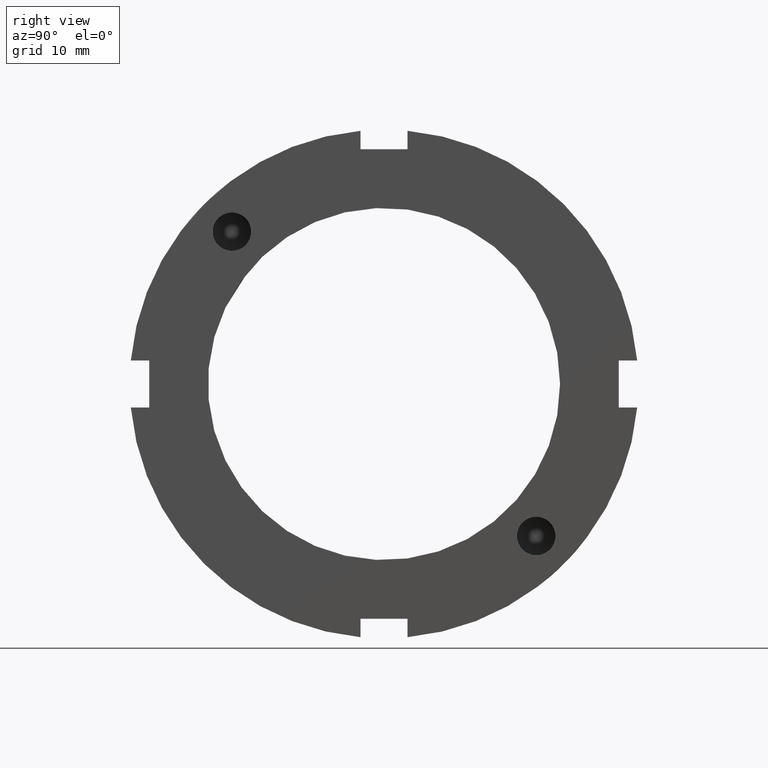
[diagram: clean part render]
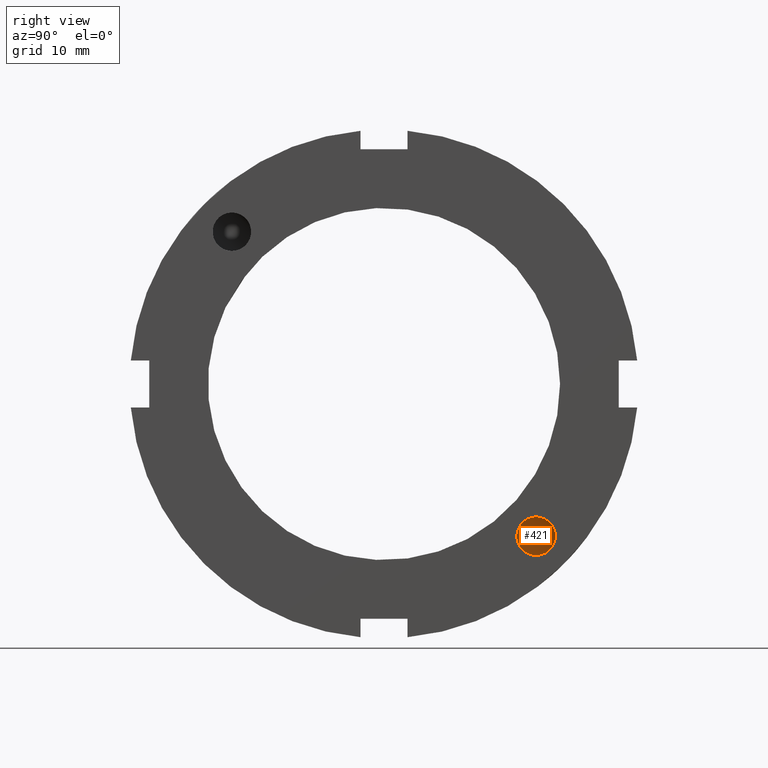
[diagram: same view with one face highlighted and labeled with its STEP entity id]
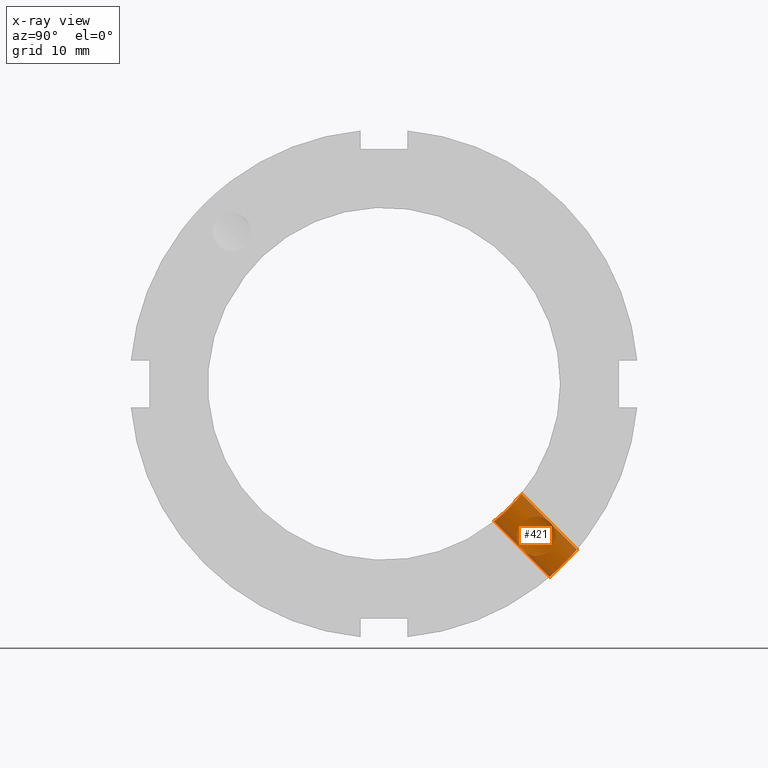
[diagram: x-ray of the same camera — body ghosted, the highlighted face saturated]
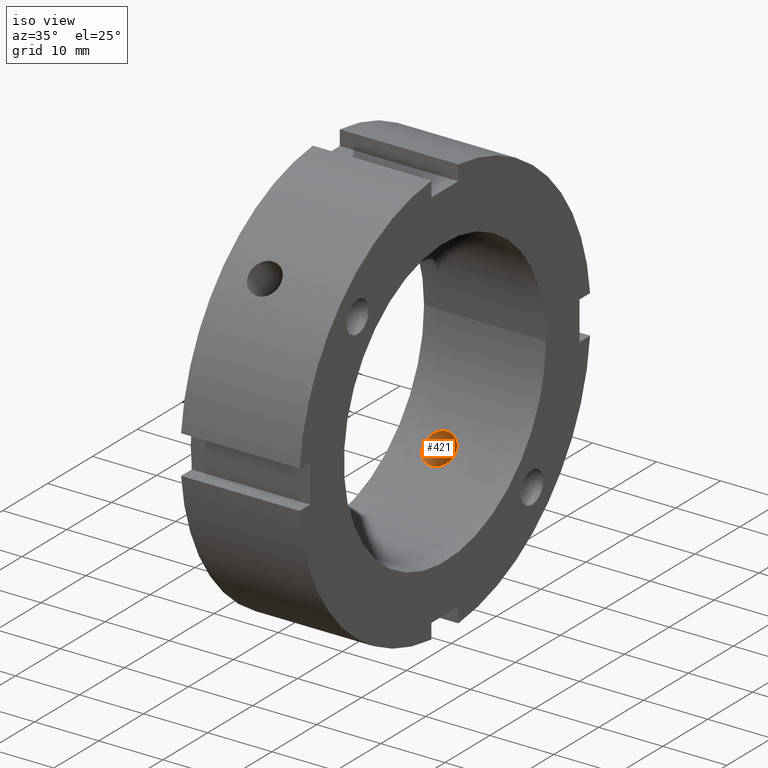
[diagram: same view with one face highlighted and labeled with its STEP entity id]
A machine part, right view. The second image highlights one B-rep face of the part: STEP entity #421.
The next image is the same camera in x-ray: the body ghosted, the highlighted face saturated — about 28% of this face is hidden behind the body in this view.
A second angle (iso view) of the same face is appended — the face is thin or edge-on in the first view.
In plain terms, the highlighted cylindrical surface (bore or boss wall) has radius 2.5 mm, axis along (0, 0.7071, -0.7071).
Its self-contained STEP definition (entity closure, byte-faithful):
#155=CARTESIAN_POINT('',(7.453627325014712,17.707014461082927,-21.183858504177199));
#156=VERTEX_POINT('',#155);
#157=CARTESIAN_POINT('',(7.453627325014694,17.707014461082927,-21.183858504177199));
#158=CARTESIAN_POINT('',(7.453627325014697,17.780514839018323,-21.257358882112595));
#159=CARTESIAN_POINT('',(7.485845144440799,17.843070083659555,-21.311664636771713));
#160=CARTESIAN_POINT('',(7.564508256890359,17.965413600412720,-21.410104479451761));
#161=CARTESIAN_POINT('',(7.612937817032519,18.024722311162975,-21.453235816937504));
#162=CARTESIAN_POINT('',(7.772228880000082,18.209742092433668,-21.575980550555499));
#163=CARTESIAN_POINT('',(7.895505545516970,18.339752875581166,-21.646778716114468));
#164=CARTESIAN_POINT('',(8.283828024816582,18.769385504964781,-21.829563965013897));
#165=CARTESIAN_POINT('',(8.561851096446061,19.102287243300900,-21.903936482630058));
#166=CARTESIAN_POINT('',(8.987347846502093,19.724179741279716,-21.903936482630048));
#167=CARTESIAN_POINT('',(9.170926118717734,20.040097651455447,-21.853377454499089));
#168=CARTESIAN_POINT('',(9.363473477026195,20.497944793285487,-21.673292772606892));
#169=CARTESIAN_POINT('',(9.414345366287389,20.648154857963078,-21.596321310773000));
#170=CARTESIAN_POINT('',(9.482622830029026,20.931412627416726,-21.411323542444759));
#171=CARTESIAN_POINT('',(9.499999999999993,21.064448448670458,-21.303268559683900));
#172=CARTESIAN_POINT('',(9.499999999999993,21.303268559683893,-21.064448448670468));
#173=CARTESIAN_POINT('',(9.482622830029028,21.411323542444745,-20.931412627416744));
#174=CARTESIAN_POINT('',(9.414345366287385,21.596321310772993,-20.648154857963085));
#175=CARTESIAN_POINT('',(9.363473477026187,21.673292772606885,-20.497944793285484));
#176=CARTESIAN_POINT('',(9.170926118717720,21.853377454499086,-20.040097651455433));
#177=CARTESIAN_POINT('',(8.987347846502079,21.903936482630037,-19.724179741279702));
#178=CARTESIAN_POINT('',(8.561851096446040,21.903936482630037,-19.102287243300886));
#179=CARTESIAN_POINT('',(8.283828024816549,21.829563965013882,-18.769385504964774));
#180=CARTESIAN_POINT('',(7.895505545516941,21.646778716114447,-18.339752875581166));
#181=CARTESIAN_POINT('',(7.772228880000068,21.575980550555478,-18.209742092433661));
#182=CARTESIAN_POINT('',(7.612937817032515,21.453235816937479,-18.024722311162968));
#183=CARTESIAN_POINT('',(7.564508256890344,21.410104479451736,-17.965413600412717));
#184=CARTESIAN_POINT('',(7.485845144440787,21.311664636771688,-17.843070083659558));
#185=CARTESIAN_POINT('',(7.453627325014747,21.257358882112563,-17.780514839018338));
#186=CARTESIAN_POINT('',(7.453627325014747,21.110358126241771,-17.633514083147546));
#187=CARTESIAN_POINT('',(7.485845144440798,21.047802881600539,-17.579208328488413));
#188=CARTESIAN_POINT('',(7.564508256890358,20.925459364847381,-17.480768485808369));
#189=CARTESIAN_POINT('',(7.612937817032524,20.866150654097140,-17.437637148322636));
#190=CARTESIAN_POINT('',(7.772228880000091,20.681130872826454,-17.314892414704637));
#191=CARTESIAN_POINT('',(7.895505545516953,20.551120089678932,-17.244094249145657));
#192=CARTESIAN_POINT('',(8.283828024816561,20.121487460295320,-17.061309000246222));
#193=CARTESIAN_POINT('',(8.561851096446038,19.788585721959226,-16.986936482630064));
#194=CARTESIAN_POINT('',(8.987347846502081,19.166693223980403,-16.986936482630064));
#195=CARTESIAN_POINT('',(9.170926118717729,18.850775313804672,-17.037495510761026));
#196=CARTESIAN_POINT('',(9.363473477026195,18.392928171974617,-17.217580192653230));
#197=CARTESIAN_POINT('',(9.414345366287387,18.242718107297019,-17.294551654487126));
#198=CARTESIAN_POINT('',(9.482622830029028,17.959460337843357,-17.479549422815378));
#199=CARTESIAN_POINT('',(9.499999999999995,17.826424516589633,-17.587604405576233));
#200=CARTESIAN_POINT('',(9.499999999999991,17.587604405576197,-17.826424516589668));
#201=CARTESIAN_POINT('',(9.482622830029023,17.479549422815346,-17.959460337843396));
#202=CARTESIAN_POINT('',(9.414345366287382,17.294551654487101,-18.242718107297055));
#203=CARTESIAN_POINT('',(9.363473477026185,17.217580192653209,-18.392928171974653));
#204=CARTESIAN_POINT('',(9.170926118717715,17.037495510761012,-18.850775313804704));
#205=CARTESIAN_POINT('',(8.987347846502068,16.986936482630053,-19.166693223980438));
#206=CARTESIAN_POINT('',(8.561851096446024,16.986936482630057,-19.788585721959265));
#207=CARTESIAN_POINT('',(8.283828024816538,17.061309000246222,-20.121487460295370));
#208=CARTESIAN_POINT('',(7.895505545516929,17.244094249145657,-20.551120089678978));
#209=CARTESIAN_POINT('',(7.772228880000074,17.314892414704637,-20.681130872826490));
#210=CARTESIAN_POINT('',(7.612937817032517,17.437637148322636,-20.866150654097176));
#211=CARTESIAN_POINT('',(7.564508256890345,17.480768485808365,-20.925459364847413));
#212=CARTESIAN_POINT('',(7.485845144440796,17.579208328488413,-21.047802881600571));
#213=CARTESIAN_POINT('',(7.453627325014710,17.633514083147531,-21.110358126241803));
#214=CARTESIAN_POINT('',(7.453627325014712,17.707014461082927,-21.183858504177199));
#215=B_SPLINE_CURVE_WITH_KNOTS('',3,(#157,#158,#159,#160,#161,#162,#163,#164,#165,#166,#167,#168,#169,#170,#171,#172,#173,#174,#175,#176,#177,#178,#179,#180,#181,#182,#183,#184,#185,#186,#187,#188,#189,#190,#191,#192,#193,#194,#195,#196,#197,#198,#199,#200,#201,#202,#203,#204,#205,#206,#207,#208,#209,#210,#211,#212,#213,#214),.UNSPECIFIED.,.T.,.U.,(4,2,2,2,2,2,2,2,2,2,2,2,2,2,2,2,2,2,2,2,2,2,2,2,2,2,2,2,4),(0.0,0.031183569394736,0.062367138789472,0.124734277578943,0.249468555157887,0.350791347146679,0.401452743141076,0.452114139135472,0.502775535129869,0.553436931124266,0.654759723113060,0.779494000692003,0.841861139481475,0.873044708876211,0.904228278270947,0.935411847665683,0.966595417060419,1.028962555849891,1.153696833428835,1.255019625417630,1.305681021412028,1.356342417406425,1.407003813400822,1.457665209395219,1.558988001384014,1.683722278962959,1.746089417752431,1.777272987147168,1.808456556541904),.UNSPECIFIED.);
#216=EDGE_CURVE('',#156,#156,#215,.T.);
#323=CARTESIAN_POINT('',(6.999999999999993,-43.121223221029304,43.121223221029339));
#324=DIRECTION('',(0.0,0.707106781186547,-0.707106781186548));
#325=DIRECTION('',(-1.0,0.0,0.0));
#326=AXIS2_PLACEMENT_3D('',#323,#324,#325);
#327=CYLINDRICAL_SURFACE('',#326,2.500000000000000);
#328=CARTESIAN_POINT('',(4.499999999999993,22.980970388562785,-22.980970388562802));
#329=VERTEX_POINT('',#328);
#330=CARTESIAN_POINT('',(9.499999999999993,22.980970388562785,-22.980970388562802));
#331=VERTEX_POINT('',#330);
#332=CARTESIAN_POINT('',(4.499999999999993,22.980970388562785,-22.980970388562799));
#333=CARTESIAN_POINT('',(4.499999999999993,22.758911631304262,-23.203029145821322));
#334=CARTESIAN_POINT('',(4.562786054761529,22.518562594759700,-23.436280801691417));
#335=CARTESIAN_POINT('',(4.817958902460021,22.070218890903689,-23.858968067764387));
#336=CARTESIAN_POINT('',(5.010338838710080,21.862399633320805,-24.048593834497627));
#337=CARTESIAN_POINT('',(5.454127518788808,21.531499546972420,-24.345305718344228));
#338=CARTESIAN_POINT('',(5.735163473834998,21.386358016310322,-24.472230214677204));
#339=CARTESIAN_POINT('',(6.351074994242119,21.193068525340330,-24.639809402754452));
#340=CARTESIAN_POINT('',(6.685961121016407,21.145111521812826,-24.680645427745567));
#341=CARTESIAN_POINT('',(7.314038878983578,21.145111521812826,-24.680645427745567));
#342=CARTESIAN_POINT('',(7.648925005757866,21.193068525340330,-24.639809402754452));
#343=CARTESIAN_POINT('',(8.264836526164988,21.386358016310322,-24.472230214677204));
#344=CARTESIAN_POINT('',(8.545872481211177,21.531499546972420,-24.345305718344228));
#345=CARTESIAN_POINT('',(8.989661161289906,21.862399633320805,-24.048593834497627));
#346=CARTESIAN_POINT('',(9.182041097539964,22.070218890903689,-23.858968067764394));
#347=CARTESIAN_POINT('',(9.437213945238456,22.518562594759707,-23.436280801691417));
#348=CARTESIAN_POINT('',(9.499999999999993,22.758911631304262,-23.203029145821322));
#349=CARTESIAN_POINT('',(9.499999999999993,22.980970388562785,-22.980970388562802));
#350=B_SPLINE_CURVE_WITH_KNOTS('',3,(#332,#333,#334,#335,#336,#337,#338,#339,#340,#341,#342,#343,#344,#345,#346,#347,#348,#349),.UNSPECIFIED.,.F.,.U.,(4,2,2,2,2,2,2,2,4),(0.376846431085381,0.471057982932995,0.565269534780610,0.659481198475686,0.753692862170761,0.847904525865837,0.942116189560913,1.036327741408528,1.130539293256142),.UNSPECIFIED.);
#351=EDGE_CURVE('',#329,#331,#350,.T.);
#352=ORIENTED_EDGE('',*,*,#351,.F.);
#353=CARTESIAN_POINT('',(9.499999999999993,22.980970388562785,-22.980970388562806));
#354=CARTESIAN_POINT('',(9.499999999999993,23.203029145821308,-22.758911631304283));
#355=CARTESIAN_POINT('',(9.437213945238455,23.436280801691403,-22.518562594759718));
#356=CARTESIAN_POINT('',(9.182041097539962,23.858968067764373,-22.070218890903707));
#357=CARTESIAN_POINT('',(8.989661161289906,24.048593834497609,-21.862399633320820));
#358=CARTESIAN_POINT('',(8.545872481211179,24.345305718344214,-21.531499546972441));
#359=CARTESIAN_POINT('',(8.264836526164988,24.472230214677182,-21.386358016310339));
#360=CARTESIAN_POINT('',(7.648925005757866,24.639809402754437,-21.193068525340347));
#361=CARTESIAN_POINT('',(7.314038878983579,24.680645427745556,-21.145111521812844));
#362=CARTESIAN_POINT('',(6.999999999999993,24.680645427745556,-21.145111521812844));
#363=CARTESIAN_POINT('',(6.685961121016407,24.680645427745556,-21.145111521812844));
#364=CARTESIAN_POINT('',(6.351074994242122,24.639809402754430,-21.193068525340344));
#365=CARTESIAN_POINT('',(5.735163473834999,24.472230214677179,-21.386358016310332));
#366=CARTESIAN_POINT('',(5.454127518788808,24.345305718344214,-21.531499546972434));
#367=CARTESIAN_POINT('',(5.010338838710080,24.048593834497609,-21.862399633320820));
#368=CARTESIAN_POINT('',(4.817958902460021,23.858968067764369,-22.070218890903707));
#369=CARTESIAN_POINT('',(4.562786054761529,23.436280801691399,-22.518562594759718));
#370=CARTESIAN_POINT('',(4.499999999999993,23.203029145821304,-22.758911631304279));
#371=CARTESIAN_POINT('',(4.499999999999993,22.980970388562781,-22.980970388562802));
#372=B_SPLINE_CURVE_WITH_KNOTS('',3,(#353,#354,#355,#356,#357,#358,#359,#360,#361,#362,#363,#364,#365,#366,#367,#368,#369,#370,#371),.UNSPECIFIED.,.F.,.U.,(4,2,2,2,3,2,2,2,4),(1.130539293256142,1.224750845103757,1.318962396951372,1.413174060646447,1.507385724341523,1.601597388036599,1.695809051731675,1.790020603579289,1.884232155426904),.UNSPECIFIED.);
#373=EDGE_CURVE('',#331,#329,#372,.T.);
#374=ORIENTED_EDGE('',*,*,#373,.F.);
#375=EDGE_LOOP('',(#352,#374));
#376=FACE_OUTER_BOUND('',#375,.T.);
#377=ORIENTED_EDGE('',*,*,#216,.T.);
#378=EDGE_LOOP('',(#377));
#379=FACE_BOUND('',#378,.T.);
#380=CARTESIAN_POINT('',(6.999999999999993,17.579155253808260,-14.043621347875533));
#381=VERTEX_POINT('',#380);
#382=CARTESIAN_POINT('',(6.999999999999993,17.579155253808260,-14.043621347875533));
#383=CARTESIAN_POINT('',(7.314184989265327,17.579155253808260,-14.043621347875533));
#384=CARTESIAN_POINT('',(7.649133301149944,17.539883571675325,-14.093223241805187));
#385=CARTESIAN_POINT('',(8.265004061768682,17.378042045223985,-14.292309527771057));
#386=CARTESIAN_POINT('',(8.545948787648253,17.255209611380170,-14.441511353606590));
#387=CARTESIAN_POINT('',(8.989583964980515,16.966234990981558,-14.779931617737056));
#388=CARTESIAN_POINT('',(9.181942136689486,16.780725808899266,-14.991738989516570));
#389=CARTESIAN_POINT('',(9.437157307305252,16.363779063910496,-15.445767425041936));
#390=CARTESIAN_POINT('',(9.499999999999993,16.132063758060436,-15.687741395334204));
#391=CARTESIAN_POINT('',(9.499999999999993,15.687741395334189,-16.132063758060447));
#392=CARTESIAN_POINT('',(9.437157307305251,15.445767425041923,-16.363779063910506));
#393=CARTESIAN_POINT('',(9.181942136689480,14.991738989516554,-16.780725808899280));
#394=CARTESIAN_POINT('',(8.989583964980511,14.779931617737043,-16.966234990981569));
#395=CARTESIAN_POINT('',(8.545948787648252,14.441511353606579,-17.255209611380181));
#396=CARTESIAN_POINT('',(8.265004061768677,14.292309527771042,-17.378042045223996));
#397=CARTESIAN_POINT('',(7.649133301149941,14.093223241805175,-17.539883571675333));
#398=CARTESIAN_POINT('',(7.314184989265327,14.043621347875526,-17.579155253808267));
#399=CARTESIAN_POINT('',(6.685815010734659,14.043621347875526,-17.579155253808267));
#400=CARTESIAN_POINT('',(6.350866698850045,14.093223241805175,-17.539883571675333));
#401=CARTESIAN_POINT('',(5.734995938231309,14.292309527771042,-17.378042045223996));
#402=CARTESIAN_POINT('',(5.454051212351735,14.441511353606579,-17.255209611380181));
#403=CARTESIAN_POINT('',(5.010416035019475,14.779931617737045,-16.966234990981569));
#404=CARTESIAN_POINT('',(4.818057863310507,14.991738989516552,-16.780725808899280));
#405=CARTESIAN_POINT('',(4.562842692694736,15.445767425041922,-16.363779063910510));
#406=CARTESIAN_POINT('',(4.499999999999993,15.687741395334189,-16.132063758060447));
#407=CARTESIAN_POINT('',(4.499999999999993,16.132063758060436,-15.687741395334204));
#408=CARTESIAN_POINT('',(4.562842692694734,16.363779063910492,-15.445767425041934));
#409=CARTESIAN_POINT('',(4.818057863310503,16.780725808899266,-14.991738989516566));
#410=CARTESIAN_POINT('',(5.010416035019473,16.966234990981558,-14.779931617737056));
#411=CARTESIAN_POINT('',(5.454051212351734,17.255209611380170,-14.441511353606590));
#412=CARTESIAN_POINT('',(5.734995938231306,17.378042045223985,-14.292309527771055));
#413=CARTESIAN_POINT('',(6.350866698850042,17.539883571675322,-14.093223241805186));
#414=CARTESIAN_POINT('',(6.685815010734659,17.579155253808260,-14.043621347875533));
#415=CARTESIAN_POINT('',(6.999999999999993,17.579155253808260,-14.043621347875533));
#416=B_SPLINE_CURVE_WITH_KNOTS('',3,(#382,#383,#384,#385,#386,#387,#388,#389,#390,#391,#392,#393,#394,#395,#396,#397,#398,#399,#400,#401,#402,#403,#404,#405,#406,#407,#408,#409,#410,#411,#412,#413,#414,#415),.UNSPECIFIED.,.T.,.U.,(4,2,2,2,2,2,2,2,2,2,2,2,2,2,2,2,4),(0.0,0.094255496779600,0.188510993559200,0.282766000274168,0.377021006989135,0.471276013704103,0.565531020419070,0.659786517198670,0.754042013978270,0.848297510757870,0.942553007537470,1.036808014252438,1.131063020967405,1.225318027682373,1.319573034397340,1.413828531176940,1.508084027956540),.UNSPECIFIED.);
#417=EDGE_CURVE('',#381,#381,#416,.T.);
#418=ORIENTED_EDGE('',*,*,#417,.F.);
#419=EDGE_LOOP('',(#418));
#420=FACE_BOUND('',#419,.T.);
#421=ADVANCED_FACE('',(#376,#379,#420),#327,.F.);